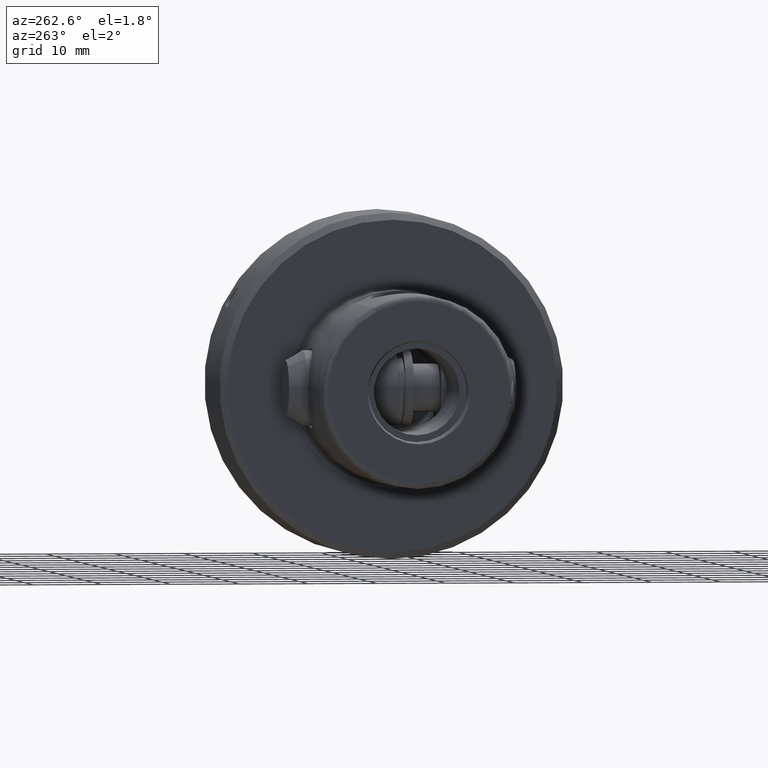
[diagram: clean part render]
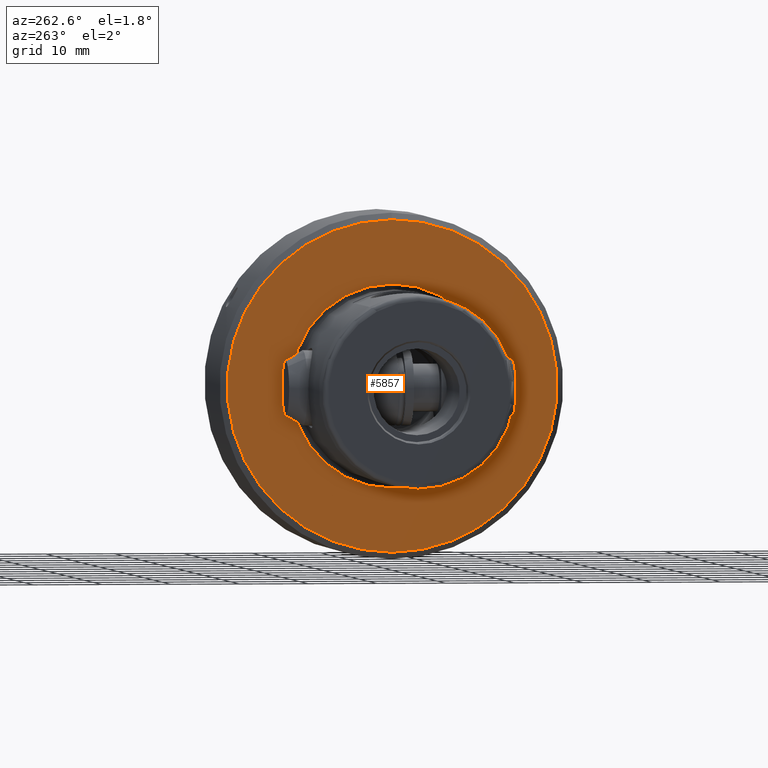
[diagram: same view with one face highlighted and labeled with its STEP entity id]
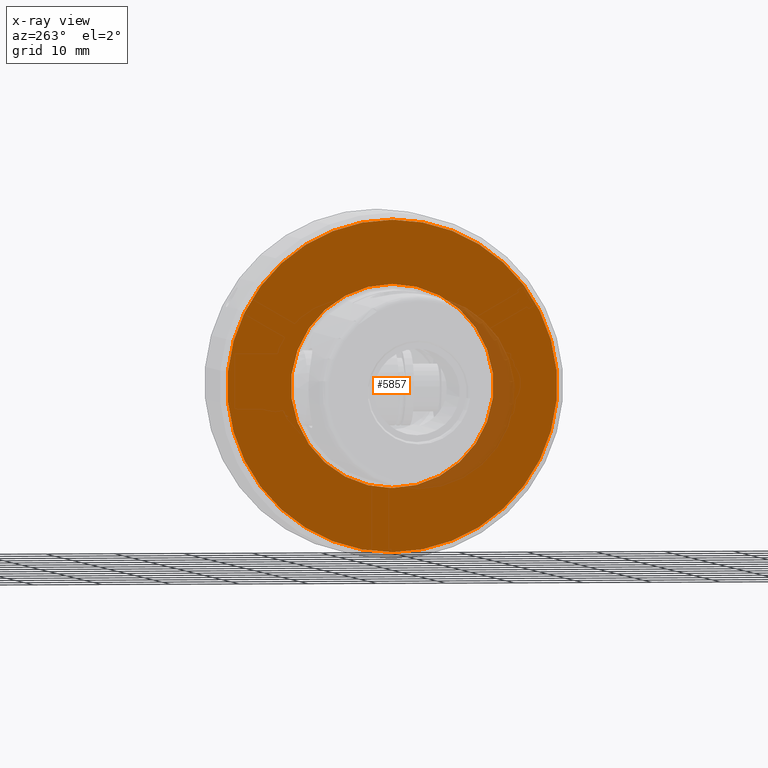
[diagram: x-ray of the same camera — body ghosted, the highlighted face saturated]
A machine part, auxiliary view. The second image highlights one B-rep face of the part: STEP entity #5857.
The next image is the same camera in x-ray: the body ghosted, the highlighted face saturated — about 7% of this face is hidden behind the body in this view.
In plain terms, the highlighted planar face has unit normal (1, 0, 0).
Its self-contained STEP definition (entity closure, byte-faithful):
#857 = DIRECTION ( 'NONE',  ( 1.000000000000000000, 0.0000000000000000000, 0.0000000000000000000 ) ) ;
#1160 = CIRCLE ( 'NONE', #5632, 24.00000000000000400 ) ;
#1730 = EDGE_LOOP ( 'NONE', ( #3923, #4050 ) ) ;
#1813 = VERTEX_POINT ( 'NONE', #9487 ) ;
#1820 = DIRECTION ( 'NONE',  ( -1.000000000000000000, -0.0000000000000000000, -0.0000000000000000000 ) ) ;
#2204 = PLANE ( 'NONE',  #7614 ) ;
#2393 = VERTEX_POINT ( 'NONE', #4025 ) ;
#2474 = CARTESIAN_POINT ( 'NONE',  ( 30.00000000000000000, 0.0000000000000000000, 0.0000000000000000000 ) ) ;
#2642 = ORIENTED_EDGE ( 'NONE', *, *, #2773, .F. ) ;
#2773 = EDGE_CURVE ( 'NONE', #2393, #8650, #4700, .T. ) ;
#3171 = AXIS2_PLACEMENT_3D ( 'NONE', #7348, #8134, #5150 ) ;
#3200 = DIRECTION ( 'NONE',  ( 0.0000000000000000000, 0.0000000000000000000, 1.000000000000000000 ) ) ;
#3227 = CIRCLE ( 'NONE', #3647, 24.00000000000000400 ) ;
#3568 = CARTESIAN_POINT ( 'NONE',  ( 30.00000000000000000, 3.000384657911015500E-015, 24.00000000000000400 ) ) ;
#3647 = AXIS2_PLACEMENT_3D ( 'NONE', #2474, #5457, #3200 ) ;
#3923 = ORIENTED_EDGE ( 'NONE', *, *, #4060, .T. ) ;
#3958 = FACE_BOUND ( 'NONE', #5259, .T. ) ;
#4001 = EDGE_CURVE ( 'NONE', #9588, #1813, #3227, .T. ) ;
#4025 = CARTESIAN_POINT ( 'NONE',  ( 30.00000000000000000, 0.0000000000000000000, 14.73903132955059900 ) ) ;
#4050 = ORIENTED_EDGE ( 'NONE', *, *, #4001, .T. ) ;
#4060 = EDGE_CURVE ( 'NONE', #1813, #9588, #1160, .T. ) ;
#4339 = DIRECTION ( 'NONE',  ( 0.0000000000000000000, 0.0000000000000000000, 1.000000000000000000 ) ) ;
#4400 = CARTESIAN_POINT ( 'NONE',  ( 30.00000000000000000, 14.73903132955059900, 0.0000000000000000000 ) ) ;
#4700 = CIRCLE ( 'NONE', #3171, 14.73903132955059900 ) ;
#5150 = DIRECTION ( 'NONE',  ( 0.0000000000000000000, 0.0000000000000000000, 1.000000000000000000 ) ) ;
#5159 = ORIENTED_EDGE ( 'NONE', *, *, #8070, .F. ) ;
#5259 = EDGE_LOOP ( 'NONE', ( #2642, #5159 ) ) ;
#5457 = DIRECTION ( 'NONE',  ( -1.000000000000000000, -0.0000000000000000000, -0.0000000000000000000 ) ) ;
#5632 = AXIS2_PLACEMENT_3D ( 'NONE', #9293, #1820, #8472 ) ;
#5857 = ADVANCED_FACE ( 'NONE', ( #3958, #6852 ), #2204, .F. ) ;
#6634 = CARTESIAN_POINT ( 'NONE',  ( 30.00000000000000000, 0.0000000000000000000, 0.0000000000000000000 ) ) ;
#6852 = FACE_OUTER_BOUND ( 'NONE', #1730, .T. ) ;
#7348 = CARTESIAN_POINT ( 'NONE',  ( 30.00000000000000000, 0.0000000000000000000, 0.0000000000000000000 ) ) ;
#7614 = AXIS2_PLACEMENT_3D ( 'NONE', #4400, #857, #8909 ) ;
#7983 = CARTESIAN_POINT ( 'NONE',  ( 30.00000000000000000, 1.805010754026669900E-015, -14.73903132955059900 ) ) ;
#8064 = AXIS2_PLACEMENT_3D ( 'NONE', #6634, #8779, #4339 ) ;
#8070 = EDGE_CURVE ( 'NONE', #8650, #2393, #8493, .T. ) ;
#8134 = DIRECTION ( 'NONE',  ( -1.000000000000000000, -0.0000000000000000000, -0.0000000000000000000 ) ) ;
#8472 = DIRECTION ( 'NONE',  ( 0.0000000000000000000, 0.0000000000000000000, 1.000000000000000000 ) ) ;
#8493 = CIRCLE ( 'NONE', #8064, 14.73903132955059900 ) ;
#8650 = VERTEX_POINT ( 'NONE', #7983 ) ;
#8779 = DIRECTION ( 'NONE',  ( -1.000000000000000000, -0.0000000000000000000, -0.0000000000000000000 ) ) ;
#8909 = DIRECTION ( 'NONE',  ( 0.0000000000000000000, 0.0000000000000000000, -1.000000000000000000 ) ) ;
#9293 = CARTESIAN_POINT ( 'NONE',  ( 30.00000000000000000, 0.0000000000000000000, 0.0000000000000000000 ) ) ;
#9487 = CARTESIAN_POINT ( 'NONE',  ( 30.00000000000000000, 0.0000000000000000000, -24.00000000000000400 ) ) ;
#9588 = VERTEX_POINT ( 'NONE', #3568 ) ;